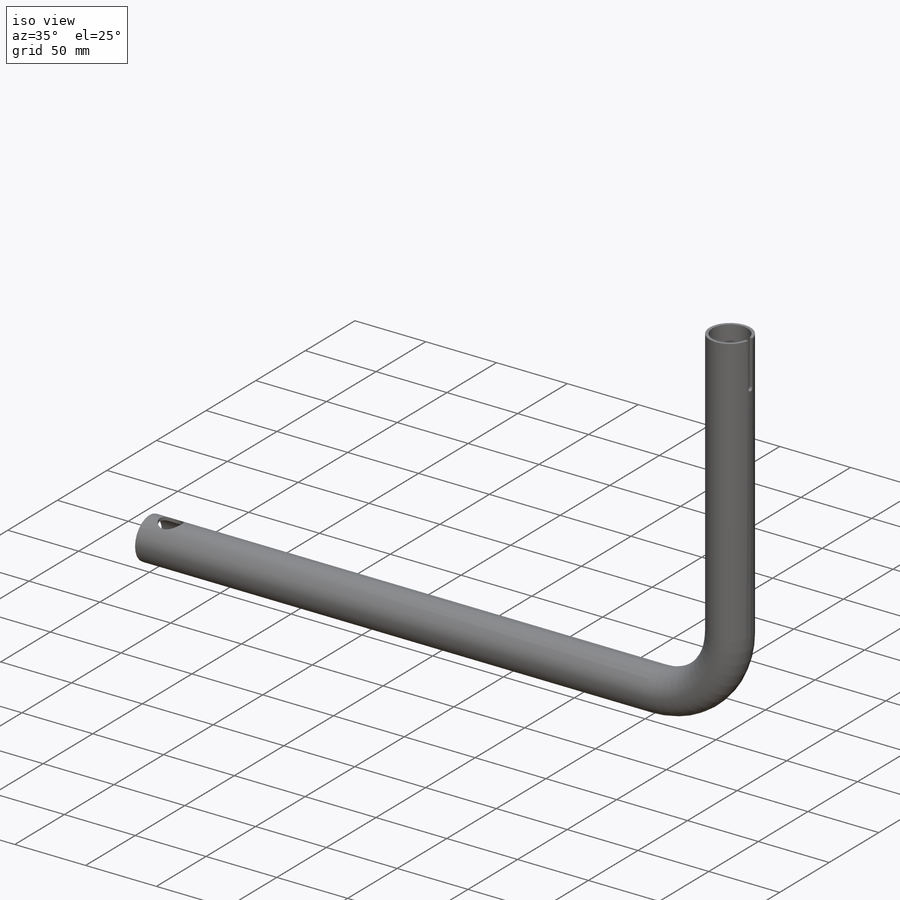
[diagram: iso view]
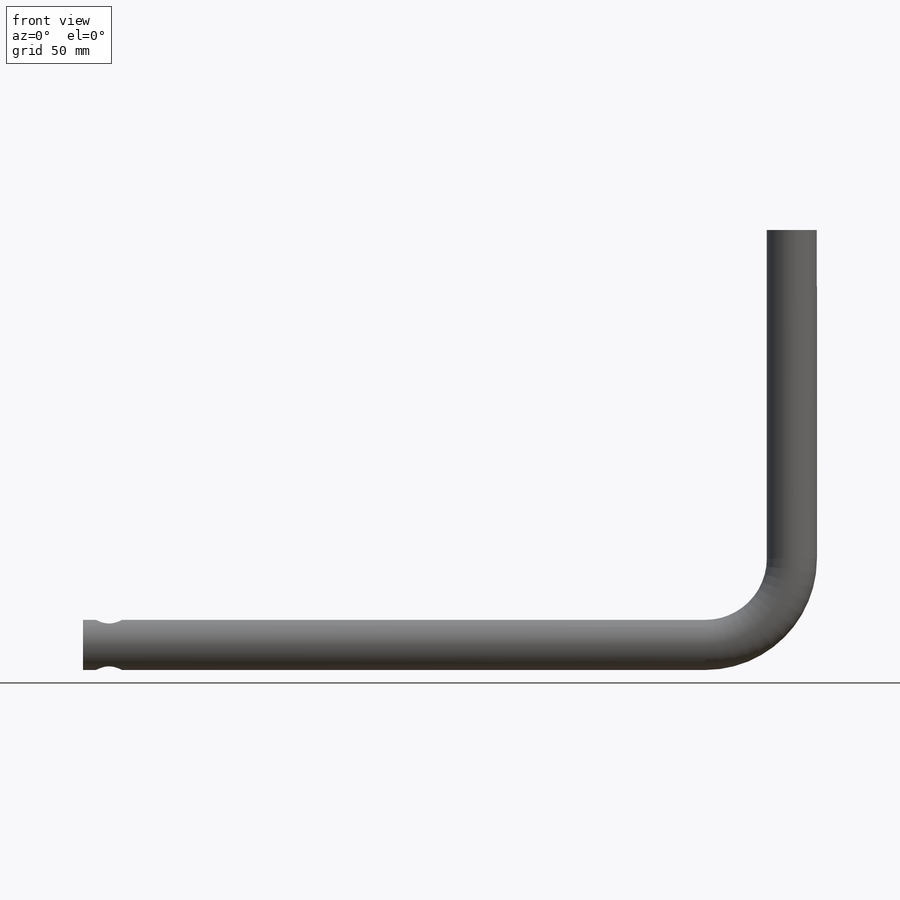
[diagram: front view]
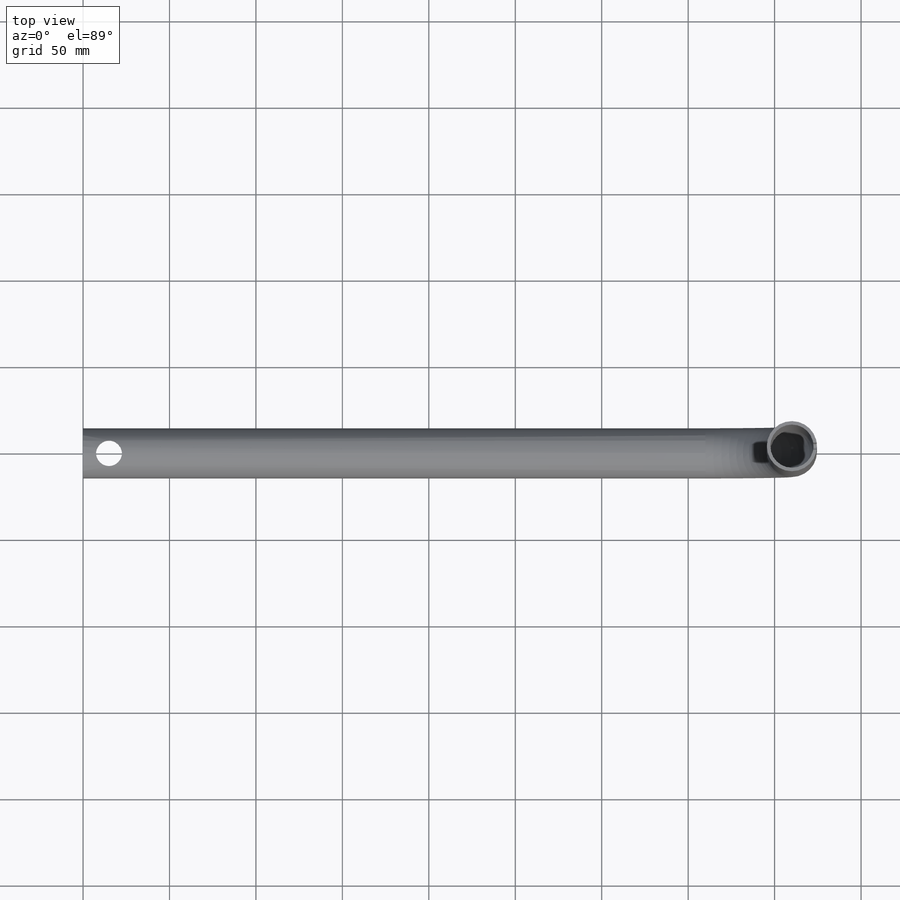
[diagram: top view]
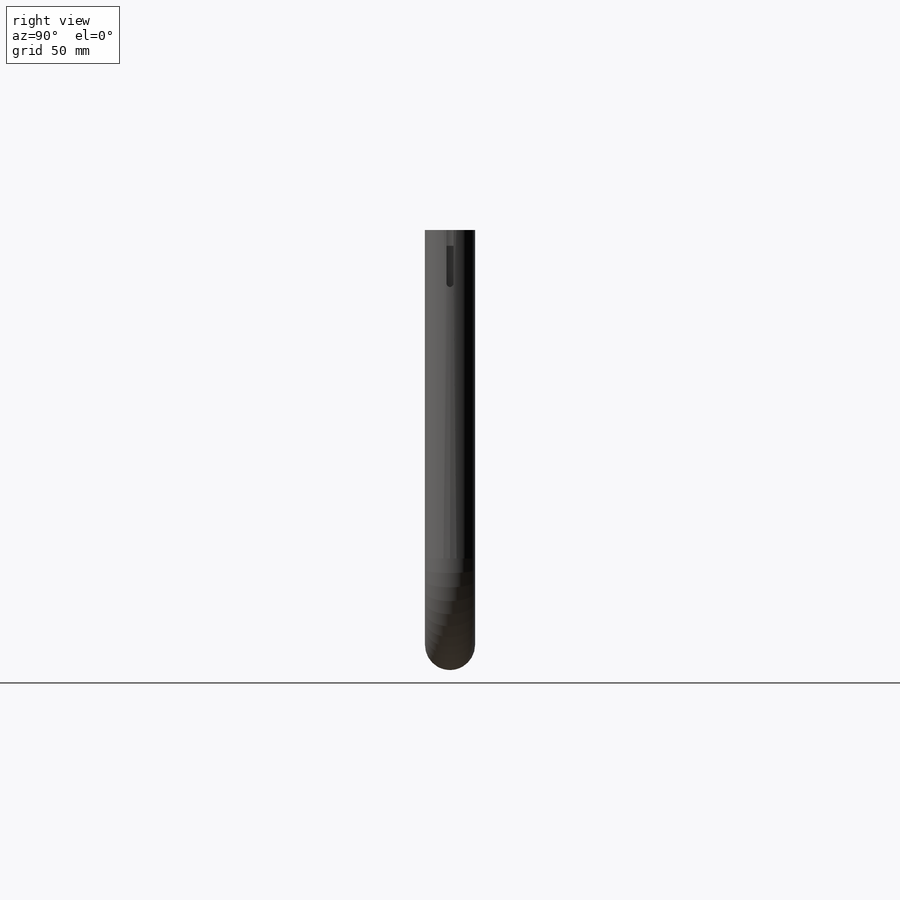
[diagram: right view]
SOLIDWORKS PART (.sldprt)
format: sldprt  version: not decoded by parser v0  size: 245,248 bytes
history: native  units: mm
features: sketch x7, plane x6, cut_extrude x3, material x1, sweep x1, shell x1, extrude x1, mirror x1 (+10 scaffold rows collapsed)
feature tree (31):
  scaffold x10  (default folders/planes/origin — collapsed)
  material  "材質 <未指定>"
  plane  "前基準面"
  plane  "上基準面"
  plane  "右基準面"
  sketch  "草圖1"  dims[D3=50.0mm D1=240.0mm D2=410.0mm]
  plane  "平面1"
  sketch  "草圖3"  dims[D1=25.0mm]
  plane  "平面2"  Offset=4mm
  sweep  "掃出5"
  shell  "薄殼7"  Thickness=2mm
  sketch  "草圖10"  dims[c1.D2=3.0mm c1.D3=3.0mm c1.D5=35.0mm c1.D1=21.0mm c2.D2=61.0mm c2.D3=11.0mm c2.D6=83.0mm c2.D4=3.0mm]
  sketch  "草圖12"  dims[c1.D1=70.0mm c1.D2=70.0mm c1.D4=3.0mm c2.D2=21.0mm c2.D3=83.0mm c2.D6=40.0mm c2.D5=3.0mm]
  extrude  "填料-伸長4"  Depth=40mm
  sketch  "草圖15"  dims[D1=5.2mm D2=5.2mm D3=5.0mm D4=5.0mm]
  cut_extrude  "除料-伸長3"  [1 undecoded]
  mirror  "鏡射2"
  plane  "平面4"  Offset=410mm
  sketch  "草圖18"  dims[c1.D3=4.0mm c1.D2=2.0mm c1.D1=4.0mm c2.D2=33.0mm]
  cut_extrude  "除料-伸長4"  [1 undecoded]
  sketch  "草圖19"  dims[D1=15.0mm D2=15.0mm]
  cut_extrude  "除料-伸長5"  Depth=50mm
decode coverage: 10 of 14 modeling features carry decoded parameters
note: 2 parameter values undecoded
note: suppression state not decoded; provenance and decode notes live in map.json
